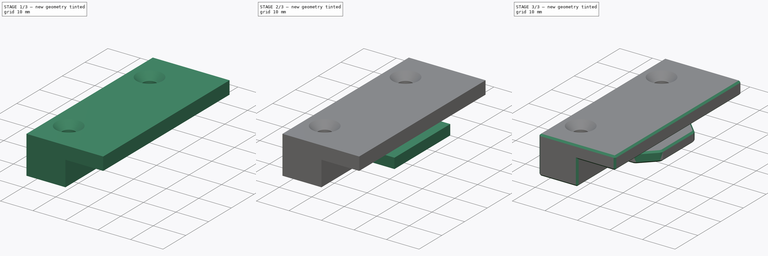
[diagram: build sequence overview — one tinted view per stage of 3, left to right]
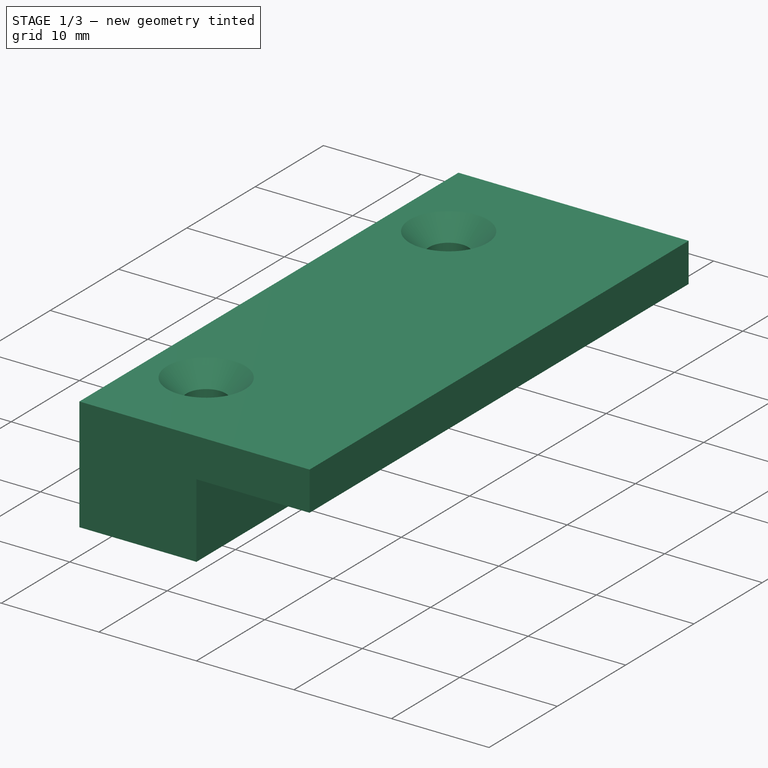
[diagram: stage 1 of 3 — iso view after this stage's code; geometry added in this stage tinted green]
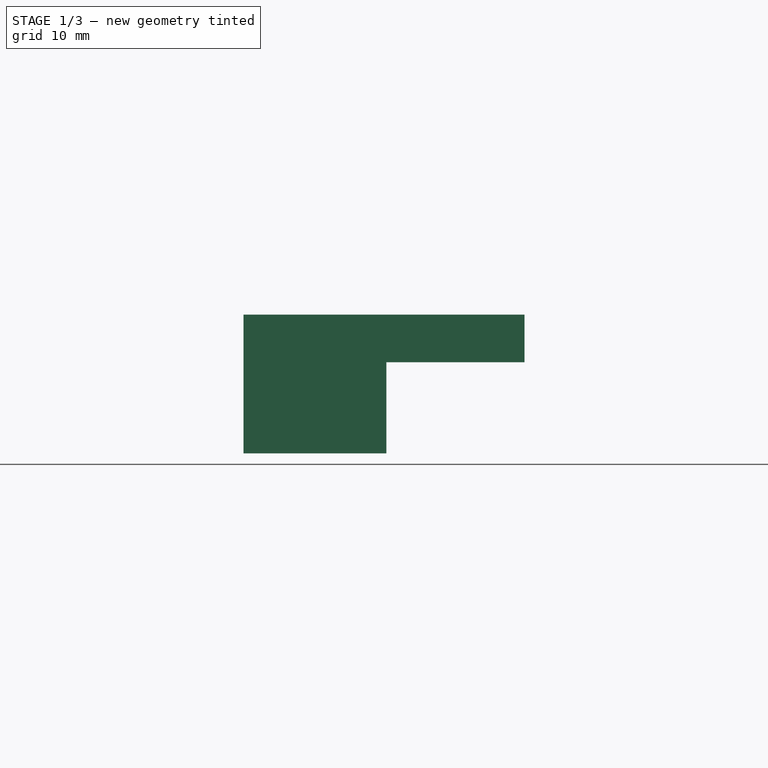
[diagram: stage 1 of 3 — front view after this stage's code; geometry added in this stage tinted green]
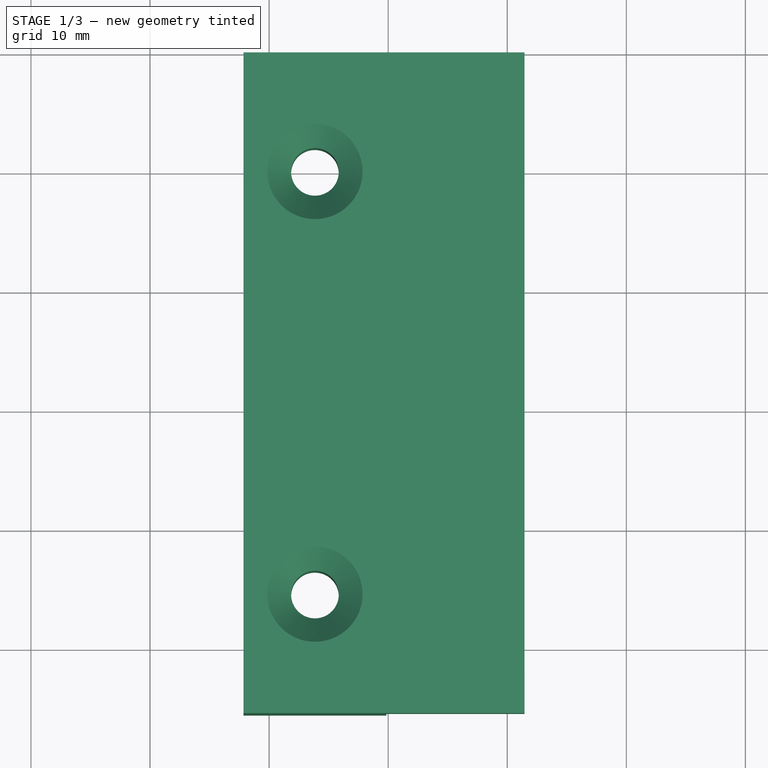
[diagram: stage 1 of 3 — top view after this stage's code; geometry added in this stage tinted green]
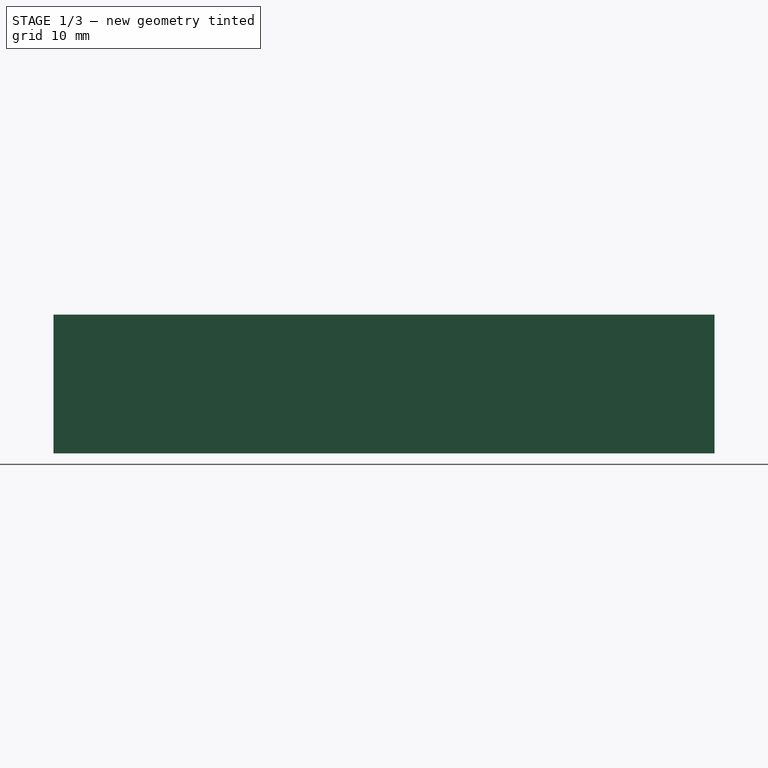
[diagram: stage 1 of 3 — right view after this stage's code; geometry added in this stage tinted green]
FCSTD DOCUMENT  (FreeCAD 0.20RUnknown)
Label: SteckerleisteMontage
License: All rights reserved
LicenseURL: http://en.wikipedia.org/wiki/All_rights_reserved
objects: Sketcher::SketchObject×3, PartDesign::Pad×2, PartDesign::Chamfer×2, PartDesign::Hole×1, PartDesign::Body×1
note: 14 computed .brp shape members not serialized (recipe doc carries the construction recipe); baked Part::Feature solids carry a one-line shape summary decoded from their .brp

FEATURE [Sketcher::SketchObject] Sketch
  FullyConstrained = true
  MapMode = 5
  Placement = pos=(0,0,0) rot=(1,0,0;1.5708rad)
  Support = -> [XZ_Plane]
  sketch-geometry (12):
    g0: LineSegment StartX=0 StartY=0 StartZ=0 EndX=0 EndY=7.5 EndZ=0
    g1: LineSegment StartX=0 StartY=7.5 StartZ=0 EndX=11.6 EndY=7.5 EndZ=0
    g2: LineSegment StartX=11.6 StartY=7.5 StartZ=0 EndX=11.6 EndY=41 EndZ=0
    g3: LineSegment StartX=11.6 StartY=41 StartZ=0 EndX=26.6 EndY=41 EndZ=0
    g4: LineSegment StartX=26.6 StartY=41 StartZ=0 EndX=26.6 EndY=0 EndZ=0
    g5: LineSegment StartX=26.6 StartY=0 StartZ=0 EndX=0 EndY=0 EndZ=0
    g6: LineSegment StartX=-12.15 StartY=0 StartZ=0 EndX=-0.15 EndY=0 EndZ=0
    g7: LineSegment StartX=-0.15 StartY=0 StartZ=0 EndX=-0.15 EndY=7.65 EndZ=0
    g8: LineSegment StartX=-0.15 StartY=7.65 StartZ=0 EndX=11.45 EndY=7.65 EndZ=0
    g9: LineSegment StartX=11.45 StartY=7.65 StartZ=0 EndX=11.45 EndY=11.65 EndZ=0
    g10: LineSegment StartX=11.45 StartY=11.65 StartZ=0 EndX=-12.15 EndY=11.65 EndZ=0
    g11: LineSegment StartX=-12.15 StartY=11.65 StartZ=0 EndX=-12.15 EndY=0 EndZ=0
  constraints (35):
    c: Coincident(g-1,g0)
    c: PointOnObject(g0,g-2)
    c: Coincident(g0,g1)
    c: Horizontal(g1)
    c: Coincident(g1,g2)
    c: Vertical(g2)
    c: Coincident(g2,g3)
    c: Horizontal(g3)
    c: Coincident(g3,g4)
    c: PointOnObject(g4,g-1)
    c: Vertical(g4)
    c: Coincident(g4,g5)
    c: Coincident(g5,g0)
    c: DistanceY(g0,g0) = 7.5
    c: DistanceY(g2,g2) = 33.5
    c: DistanceX(g3,g3) = 15
    c: DistanceX(g1,g1) = 11.6
    c: PointOnObject(g6,g-1)
    c: Horizontal(g6)
    c: Coincident(g6,g7)
    c: Vertical(g7)
    c: Coincident(g7,g8)
    c: Horizontal(g8)
    c: Coincident(g8,g9)
    c: Vertical(g9)
    c: Coincident(g9,g10)
    c: Horizontal(g10)
    c: Coincident(g10,g11)
    c: Coincident(g11,g6)
    c: Vertical(g11)
    c: DistanceY(g9,g9) = 4
    c: DistanceY(g0,g8) = 0.15
    c: DistanceX(g7,g0) = 0.15
    c: DistanceX(g8,g1) = 0.15
    c: DistanceX(g6,g6) = 12
FEATURE [PartDesign::Pad] Pad
  Direction = (0,-1,2e-16)
  Length = 55.5
  Length2 = 10
  Placement = pos=(0,0,0) rot=(1,0,0;1.5708rad)
  Profile = -> Sketch
  ReferenceAxis = -> Sketch [N_Axis]
  Type = 0
FEATURE [Sketcher::SketchObject] Sketch001
  ExternalGeometry = -> [Pad]
  FullyConstrained = true
  MapMode = 5
  Placement = pos=(0,2.6e-15,11.65) rot=(0,0,1;3.14159rad)
  Support = -> [Pad]
  sketch-geometry (7):
    g0: Circle CenterX=6.15 CenterY=10 CenterZ=0 NormalX=0 NormalY=0 NormalZ=1 AngleXU=0 Radius=2.5
    g1: Circle CenterX=6.15 CenterY=45.5 CenterZ=0 NormalX=0 NormalY=0 NormalZ=1 AngleXU=0 Radius=2.5
    g2: LineSegment StartX=6.15 StartY=10 StartZ=0 EndX=6.15 EndY=45.5 EndZ=0
    g3: LineSegment StartX=12.15 StartY=0 StartZ=0 EndX=6.15 EndY=0 EndZ=0
    g4: LineSegment StartX=6.15 StartY=0 StartZ=0 EndX=6.15 EndY=10 EndZ=0
    g5: LineSegment StartX=0.15 StartY=0 StartZ=0 EndX=6.15 EndY=0 EndZ=0
    g6: LineSegment StartX=6.15 StartY=45.5 StartZ=0 EndX=6.15 EndY=55.5 EndZ=0
  constraints (18):
    c: Equal(g0,g1)
    c: Coincident(g2,g0)
    c: Coincident(g2,g1)
    c: Diameter(g0) = 5
    c: Vertical(g2)
    c: Coincident(g-3,g3)
    c: Coincident(g4,g3)
    c: Coincident(g4,g0)
    c: Coincident(g5,g-4)
    c: Coincident(g5,g3)
    c: Vertical(g4)
    c: Horizontal(g3)
    c: Equal(g3,g5)
    c: Coincident(g6,g1)
    c: PointOnObject(g6,g-5)
    c: Vertical(g6)
    c: Equal(g4,g6)
    c: DistanceY(g4,g4) = 10
FEATURE [PartDesign::Hole] Hole
  BaseFeature = -> Pad
  CustomThreadClearance = 0
  Depth = 25
  DepthType = 0
  Diameter = 4
  DrillForDepth = false
  DrillPoint = 1
  DrillPointAngle = 118
  HoleCutCountersinkAngle = 90
  HoleCutCustomValues = false
  HoleCutDepth = 0
  HoleCutDiameter = 8
  HoleCutType = 2
  ModelThread = false
  Placement = pos=(0,0,0) rot=(1,0,0;1.5708rad)
  Profile = -> Sketch001
  Tapered = false
  TaperedAngle = 90
  ThreadClass = 0
  ThreadDepth = 25
  ThreadDepthType = 0
  ThreadDirection = 0
  ThreadFit = 0
  ThreadSize = 0
  ThreadType = 0
  Threaded = false
  UseCustomThreadClearance = false
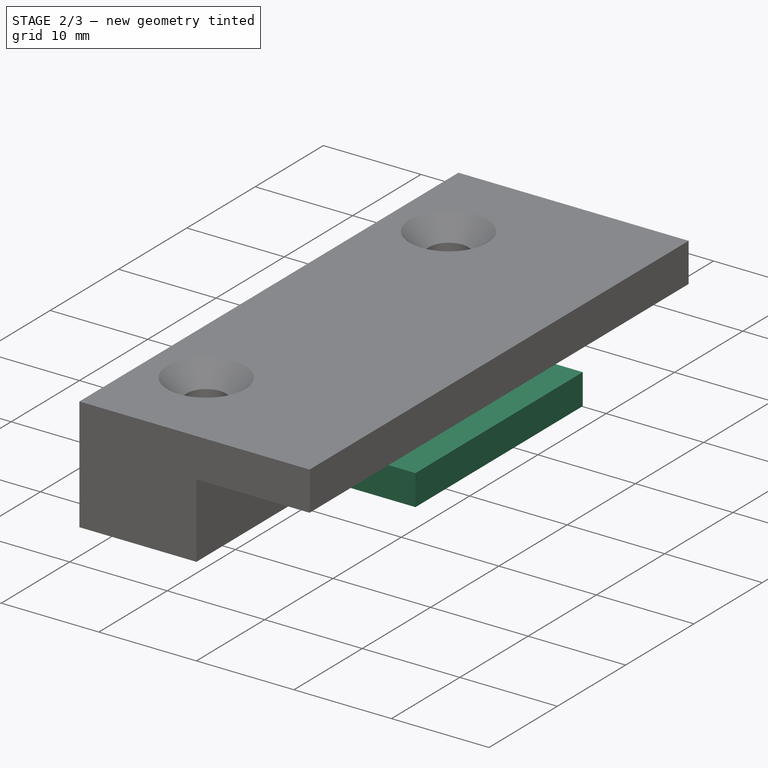
[diagram: stage 2 of 3 — iso view after this stage's code; geometry added in this stage tinted green]
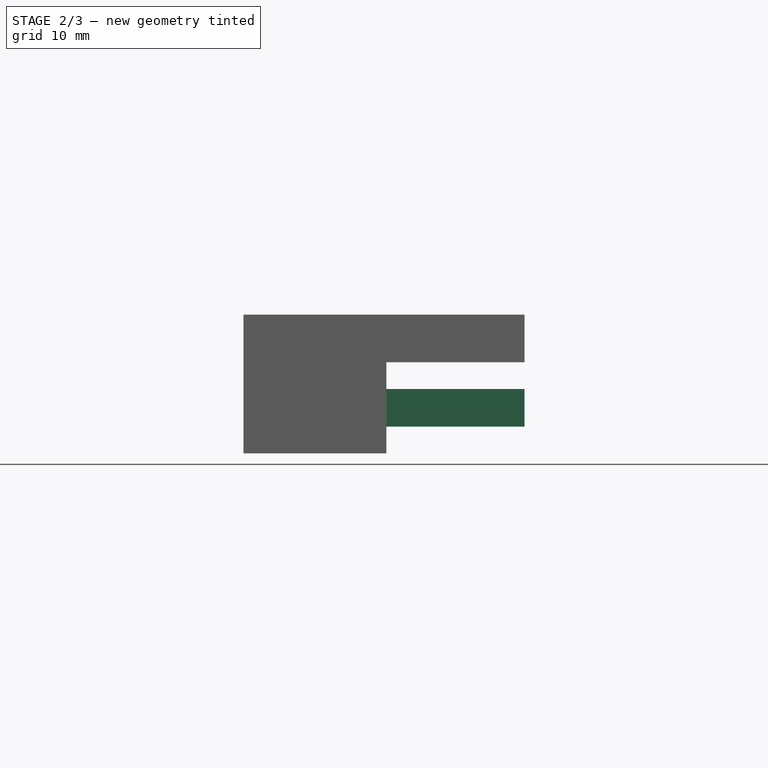
[diagram: stage 2 of 3 — front view after this stage's code; geometry added in this stage tinted green]
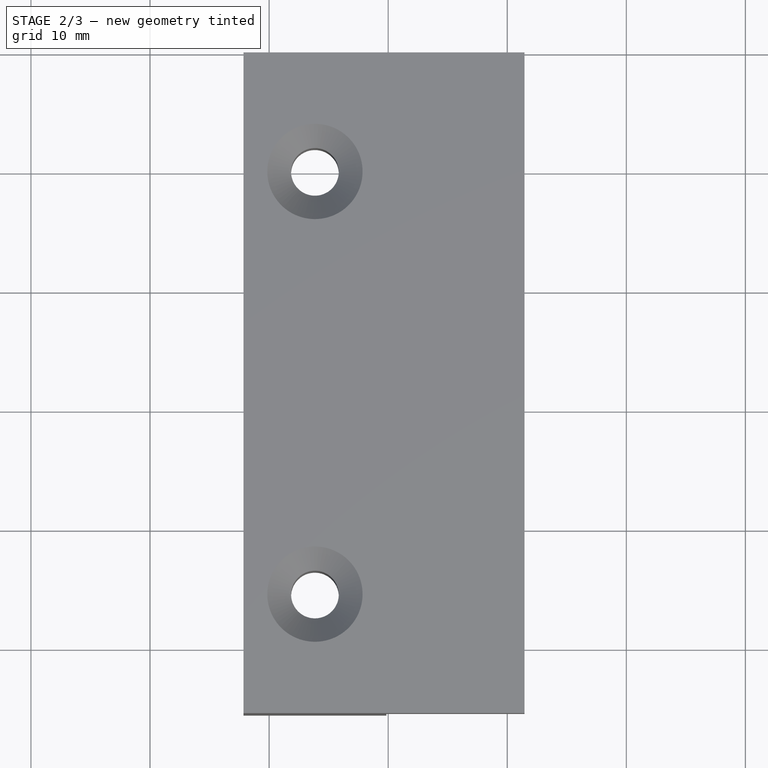
[diagram: stage 2 of 3 — top view after this stage's code; geometry added in this stage tinted green]
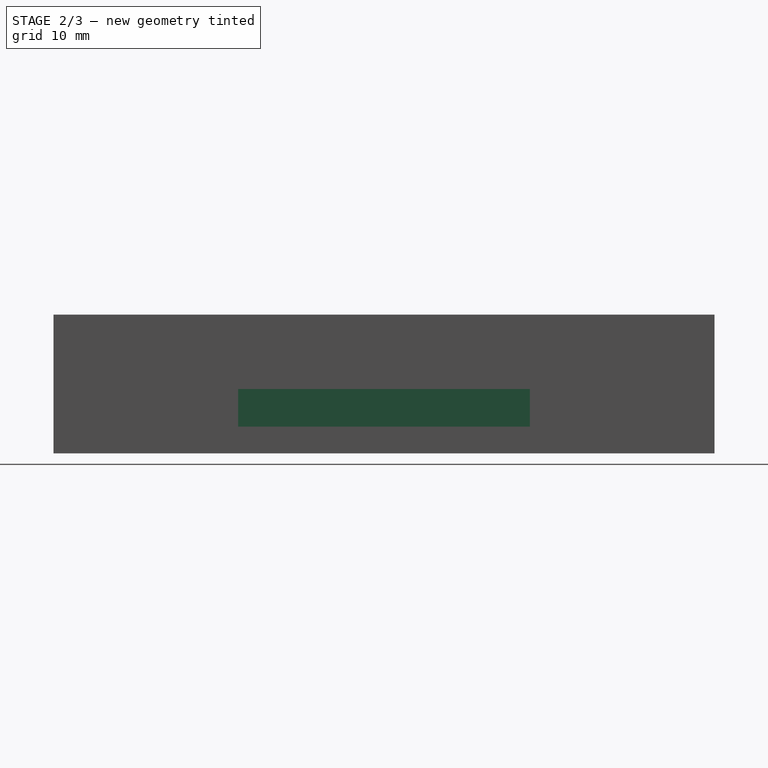
[diagram: stage 2 of 3 — right view after this stage's code; geometry added in this stage tinted green]
FEATURE [Sketcher::SketchObject] Sketch002
  ExternalGeometry = -> [Hole]
  FullyConstrained = true
  MapMode = 5
  Placement = pos=(-0.15,0,0) rot=(0.707107,0,0.707107;3.14159rad)
  Support = -> [Hole]
  expr: Constraints[10] = 25 - 0.5
  expr: Constraints[8] = 2 + 0.25
  expr: Constraints[9] = 2 + 0.25
  sketch-geometry (6):
    g0: LineSegment StartX=2.25 StartY=40 StartZ=0 EndX=5.4 EndY=40 EndZ=0
    g1: LineSegment StartX=5.4 StartY=40 StartZ=0 EndX=5.4 EndY=15.5 EndZ=0
    g2: LineSegment StartX=5.4 StartY=15.5 StartZ=0 EndX=2.25 EndY=15.5 EndZ=0
    g3: LineSegment StartX=2.25 StartY=15.5 StartZ=0 EndX=2.25 EndY=40 EndZ=0
    g4: LineSegment StartX=2.25 StartY=40 StartZ=0 EndX=2.25 EndY=55.5 EndZ=0
    g5: LineSegment StartX=2.25 StartY=15.5 StartZ=0 EndX=2.25 EndY=0 EndZ=0
  constraints (18):
    c: Coincident(g0,g1)
    c: Coincident(g1,g2)
    c: Coincident(g2,g3)
    c: Coincident(g3,g0)
    c: Horizontal(g0)
    c: Horizontal(g2)
    c: Vertical(g1)
    c: Vertical(g3)
    c: DistanceX(g-3,g0) = 2.25
    c: DistanceX(g0,g-3) = 2.25
    c: DistanceY(g3,g3) = 24.5
    c: Coincident(g4,g0)
    c: PointOnObject(g4,g-3)
    c: Vertical(g4)
    c: Coincident(g5,g2)
    c: PointOnObject(g5,g-1)
    c: Vertical(g5)
    c: Equal(g5,g4)
FEATURE [PartDesign::Pad] Pad001
  BaseFeature = -> Hole
  Direction = (1,0,-2e-16)
  Length = 10
  Length2 = 10
  Placement = pos=(0,0,0) rot=(1,0,0;1.5708rad)
  Profile = -> Sketch002
  ReferenceAxis = -> Sketch002 [N_Axis]
  Type = 3
  UpToFace = -> Hole [Face10]
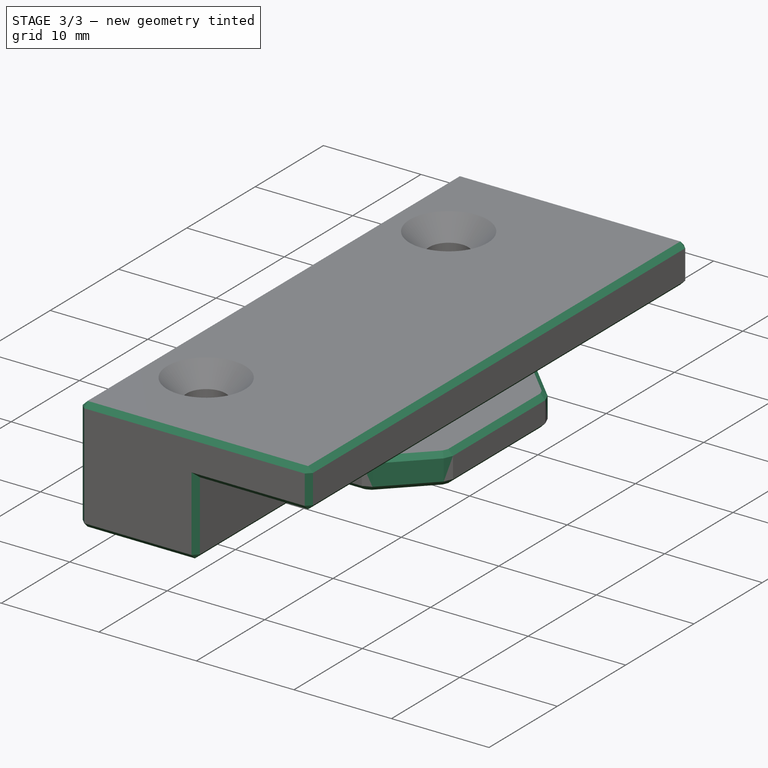
[diagram: stage 3 of 3 — iso view after this stage's code; geometry added in this stage tinted green]
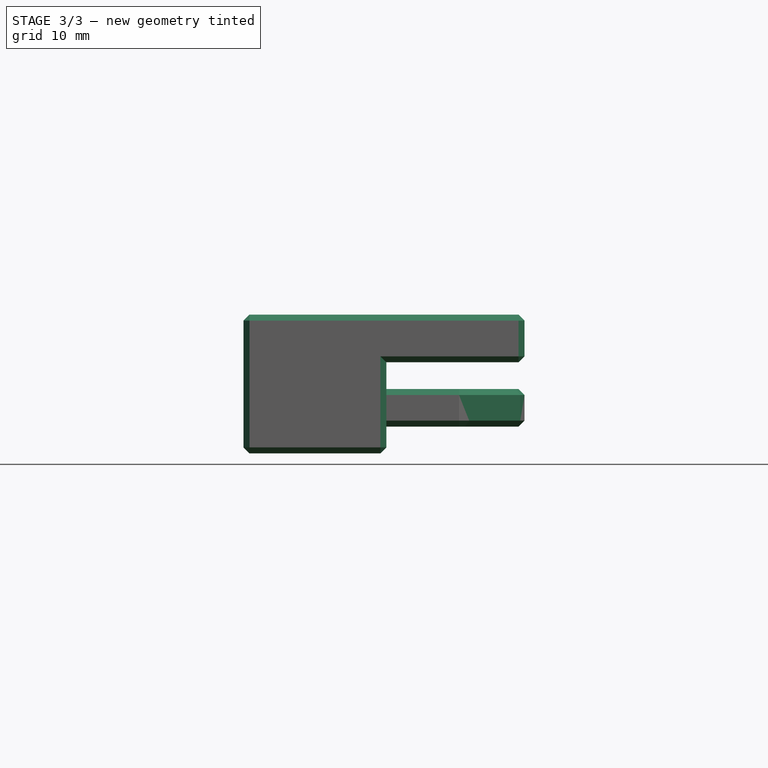
[diagram: stage 3 of 3 — front view after this stage's code; geometry added in this stage tinted green]
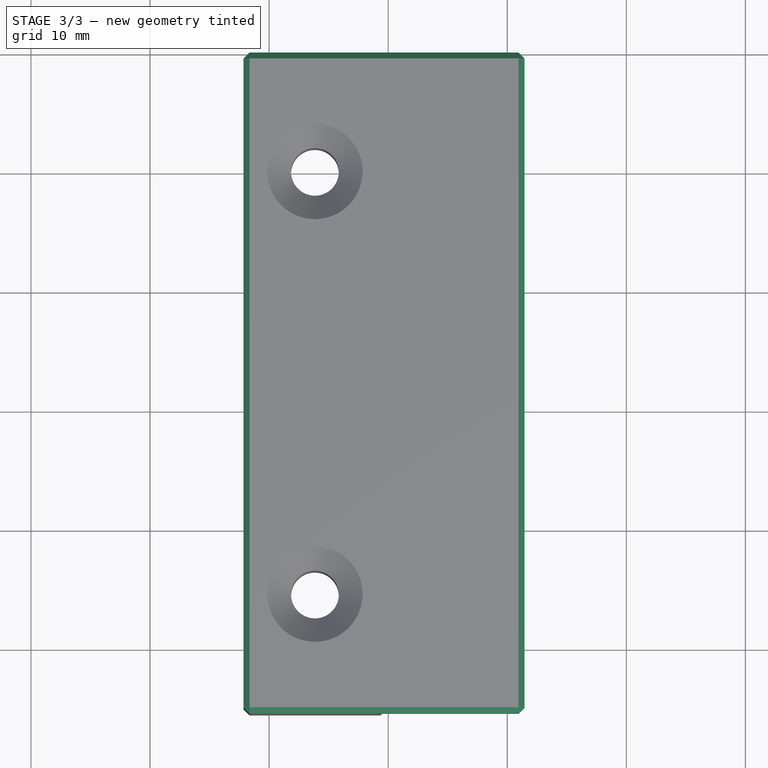
[diagram: stage 3 of 3 — top view after this stage's code; geometry added in this stage tinted green]
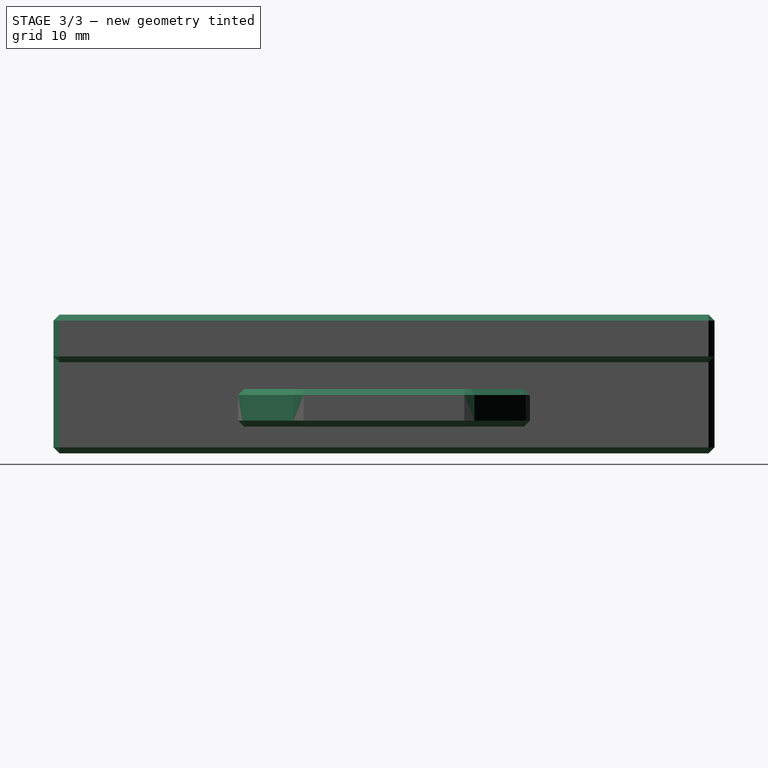
[diagram: stage 3 of 3 — right view after this stage's code; geometry added in this stage tinted green]
FEATURE [PartDesign::Chamfer] Chamfer
  Angle = 45
  Base = -> Pad001 [Edge37,Edge32]
  BaseFeature = -> Pad001
  ChamferType = 0
  FlipDirection = false
  Placement = pos=(0,0,0) rot=(1,0,0;1.5708rad)
  Size = 5
  Size2 = 1
  SupportTransform = false
  UseAllEdges = false
FEATURE [PartDesign::Chamfer] Chamfer001
  Angle = 45
  Base = -> Chamfer [Face16,Face11,Face10,Face13,Face8,Face7,Face3,Edge4,Edge1,Edge19,Edge5,Edge12]
  BaseFeature = -> Chamfer
  ChamferType = 0
  FlipDirection = false
  Placement = pos=(0,0,0) rot=(1,0,0;1.5708rad)
  Size = 0.5
  Size2 = 1
  SupportTransform = false
  UseAllEdges = false
FEATURE [PartDesign::Body] Body
  Group = -> [Sketch,Pad,Sketch001,Hole,Sketch002,Pad001,Chamfer,Chamfer001]
  Origin = -> Origin
  Tip = -> Chamfer001
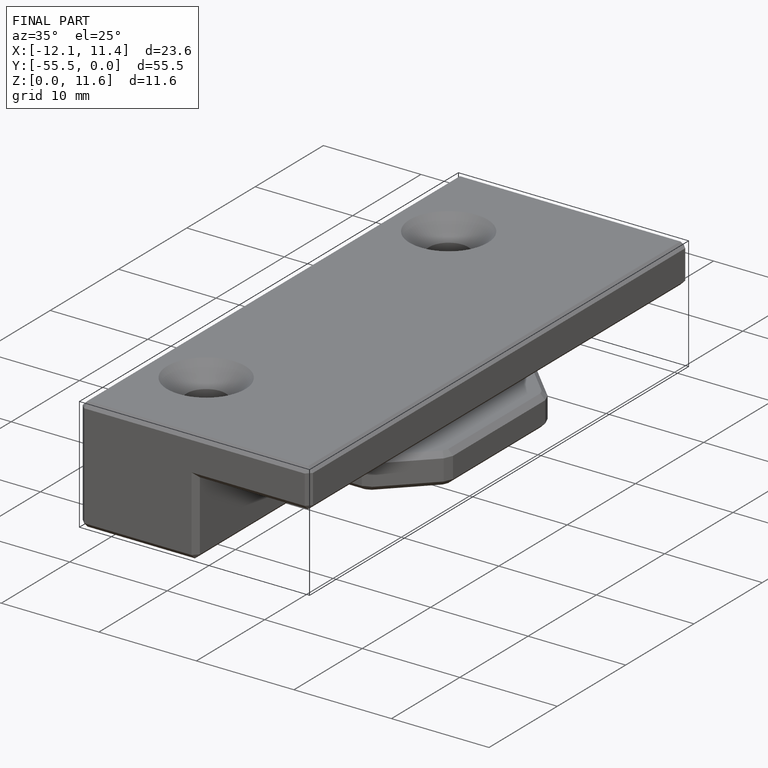
[diagram: finished part — iso view with bounding-box wireframe]
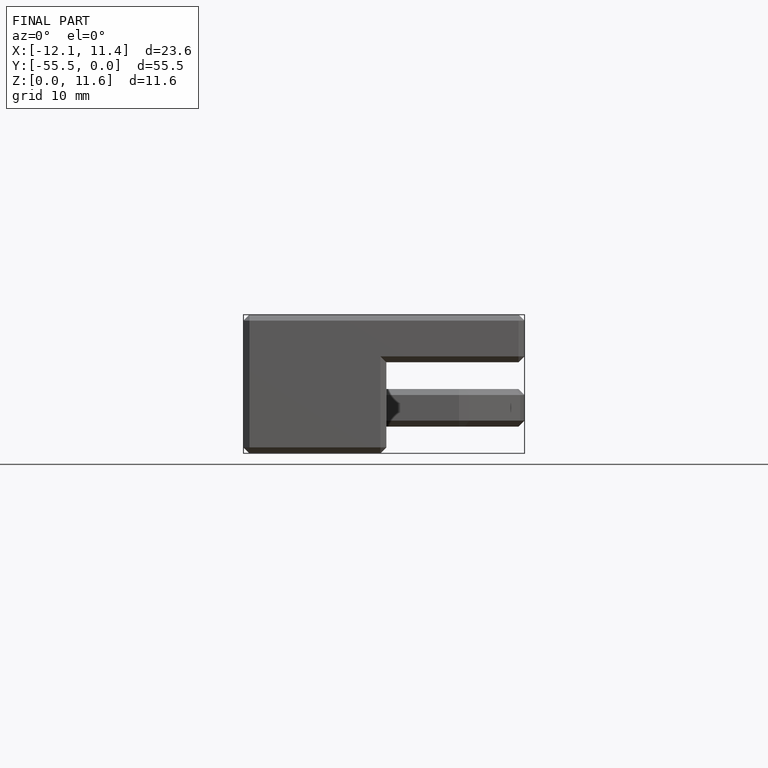
[diagram: finished part — front view with bounding-box wireframe]
